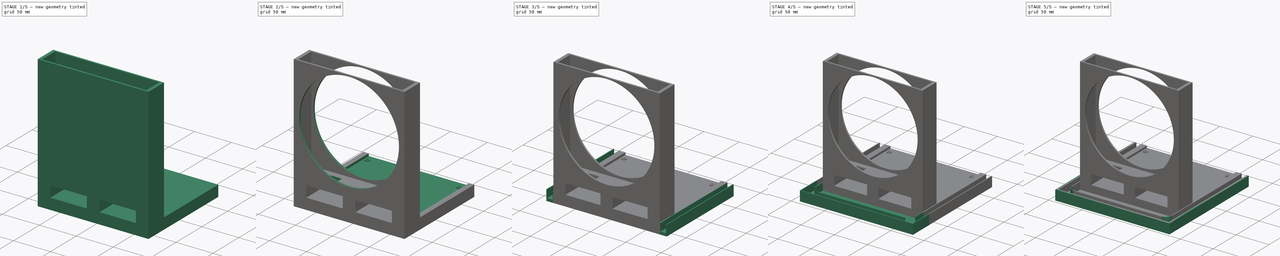
[diagram: build sequence overview — one tinted view per stage of 5, left to right]
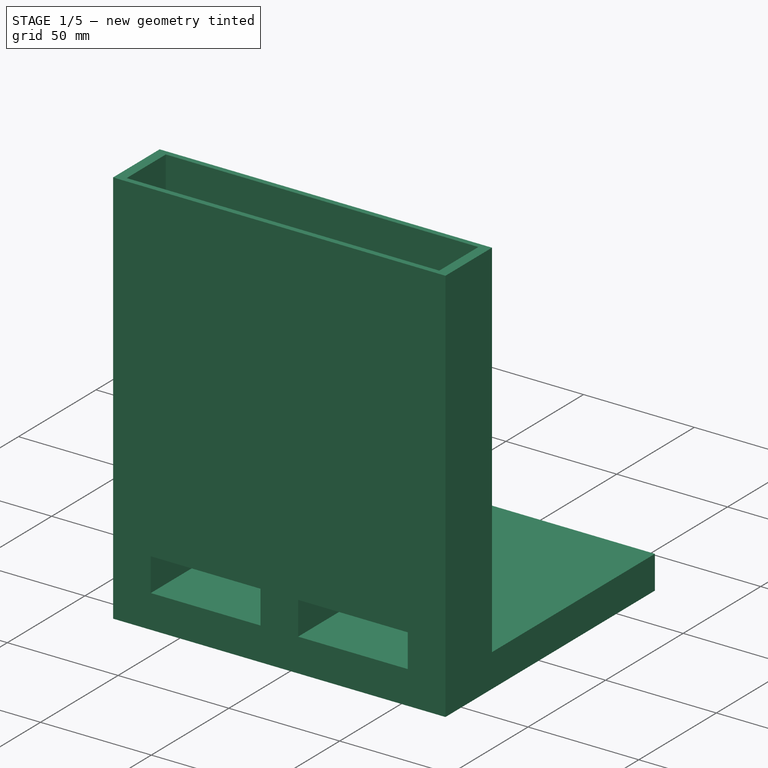
[diagram: stage 1 of 5 — iso view after this stage's code; geometry added in this stage tinted green]
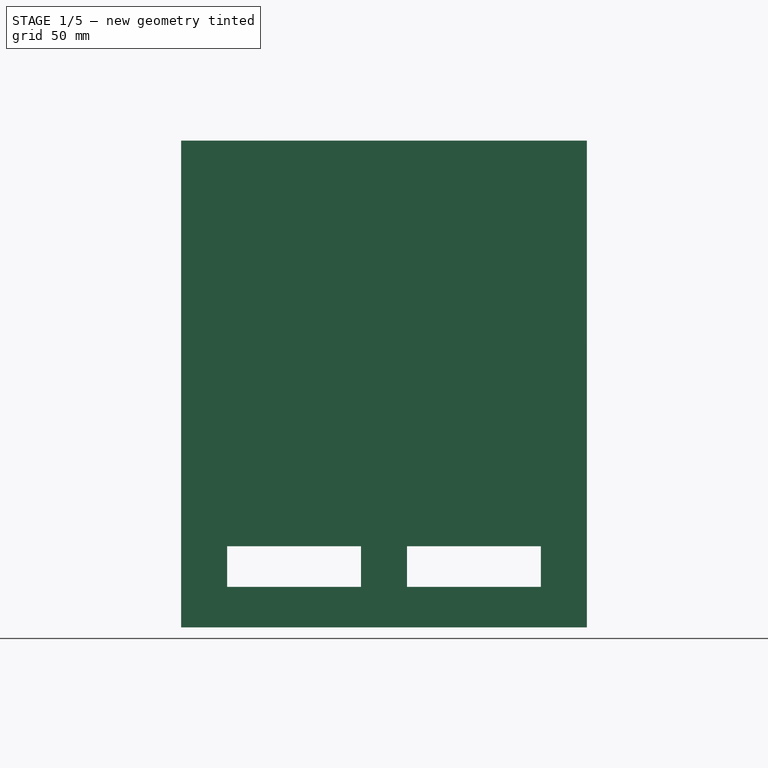
[diagram: stage 1 of 5 — front view after this stage's code; geometry added in this stage tinted green]
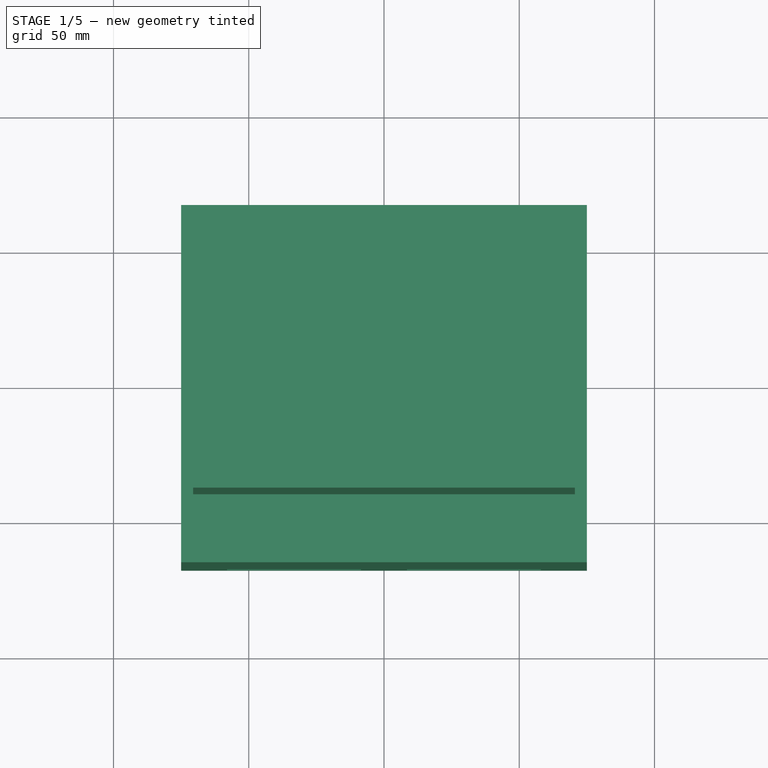
[diagram: stage 1 of 5 — top view after this stage's code; geometry added in this stage tinted green]
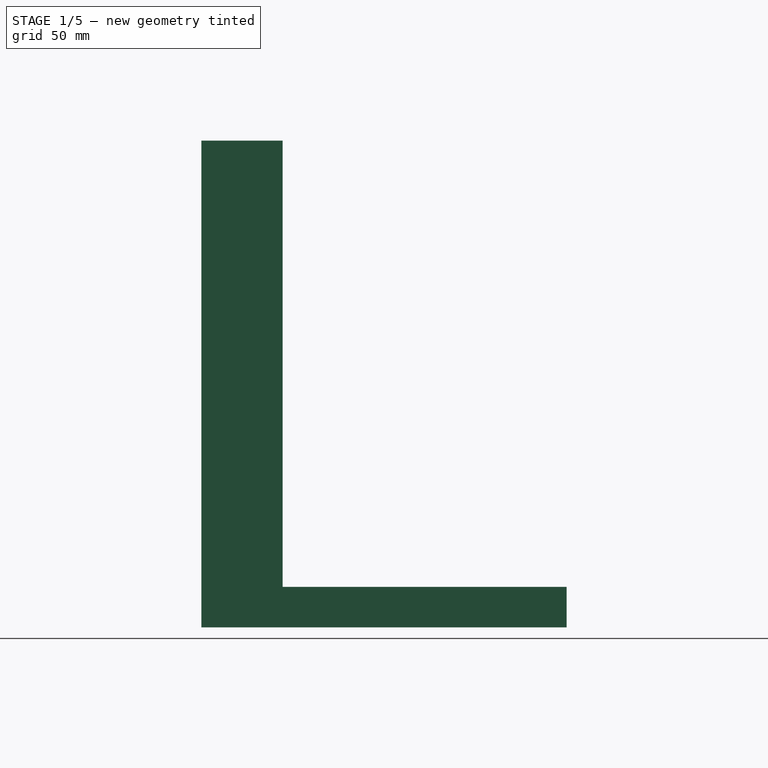
[diagram: stage 1 of 5 — right view after this stage's code; geometry added in this stage tinted green]
FCSTD DOCUMENT  (FreeCAD 0.21R33771 (Git))
Label: Fan-Case
License: All rights reserved
LicenseURL: http://en.wikipedia.org/wiki/All_rights_reserved
objects: Sketcher::SketchObject×22, PartDesign::Pad×12, PartDesign::Pocket×10, PartDesign::Body×1
note: 67 computed .brp shape members not serialized (recipe doc carries the construction recipe); baked Part::Feature solids carry a one-line shape summary decoded from their .brp

FEATURE [Sketcher::SketchObject] Sketch
  FullyConstrained = true
  MapMode = 5
  Support = -> [XY_Plane]
  sketch-geometry (5):
    g0: LineSegment StartX=-75 StartY=67.5 StartZ=0 EndX=-75 EndY=-67.5 EndZ=0
    g1: LineSegment StartX=-75 StartY=-67.5 StartZ=0 EndX=75 EndY=-67.5 EndZ=0
    g2: LineSegment StartX=75 StartY=-67.5 StartZ=0 EndX=75 EndY=67.5 EndZ=0
    g3: LineSegment StartX=75 StartY=67.5 StartZ=0 EndX=-75 EndY=67.5 EndZ=0
    g4: GeomPoint X=0 Y=0 Z=0
  constraints (12):
    c: Coincident(g0,g1)
    c: Coincident(g1,g2)
    c: Coincident(g2,g3)
    c: Coincident(g3,g0)
    c: Horizontal(g1)
    c: Horizontal(g3)
    c: Vertical(g0)
    c: Vertical(g2)
    c: Symmetric(g1,g0,g4)
    c: Coincident(g4,g-1)
    c: DistanceY(g2,g2) = 135
    c: DistanceX(g1,g1) = 150
FEATURE [PartDesign::Pad] Pad
  Direction = (0,0,1)
  Length = 15
  Length2 = 10
  Profile = -> Sketch
  ReferenceAxis = -> Sketch [N_Axis]
  Type = 0
FEATURE [Sketcher::SketchObject] Sketch001
  ExternalGeometry = -> [Pad]
  FullyConstrained = true
  MapMode = 5
  Placement = pos=(0,0,15) rot=(0,0,1;0rad)
  Support = -> [Pad]
  sketch-geometry (12):
    g0: LineSegment StartX=-75 StartY=-67.5 StartZ=0 EndX=-58 EndY=-67.5 EndZ=0
    g1: LineSegment StartX=-58 StartY=-67.5 StartZ=0 EndX=-58 EndY=-37.5 EndZ=0
    g2: LineSegment StartX=-58 StartY=-37.5 StartZ=0 EndX=-75 EndY=-37.5 EndZ=0
    g3: LineSegment StartX=-75 StartY=-37.5 StartZ=0 EndX=-75 EndY=-67.5 EndZ=0
    g4: LineSegment StartX=-8.5 StartY=-67.5 StartZ=0 EndX=8.5 EndY=-67.5 EndZ=0
    g5: LineSegment StartX=8.5 StartY=-67.5 StartZ=0 EndX=8.5 EndY=-37.5 EndZ=0
    g6: LineSegment StartX=8.5 StartY=-37.5 StartZ=0 EndX=-8.5 EndY=-37.5 EndZ=0
    g7: LineSegment StartX=-8.5 StartY=-37.5 StartZ=0 EndX=-8.5 EndY=-67.5 EndZ=0
    g8: LineSegment StartX=75 StartY=-67.5 StartZ=0 EndX=58 EndY=-67.5 EndZ=0
    g9: LineSegment StartX=58 StartY=-67.5 StartZ=0 EndX=58 EndY=-37.5 EndZ=0
    g10: LineSegment StartX=58 StartY=-37.5 StartZ=0 EndX=75 EndY=-37.5 EndZ=0
    g11: LineSegment StartX=75 StartY=-37.5 StartZ=0 EndX=75 EndY=-67.5 EndZ=0
  constraints (34):
    c: Coincident(g0,g1)
    c: Coincident(g1,g2)
    c: Coincident(g2,g3)
    c: Coincident(g3,g0)
    c: Horizontal(g0)
    c: Horizontal(g2)
    c: Vertical(g1)
    c: Vertical(g3)
    c: Coincident(g0,g-4)
    c: Coincident(g4,g5)
    c: Coincident(g5,g6)
    c: Coincident(g6,g7)
    c: Coincident(g7,g4)
    c: Horizontal(g4)
    c: Horizontal(g6)
    c: Vertical(g5)
    c: Vertical(g7)
    c: PointOnObject(g4,g-3)
    c: Coincident(g8,g9)
    c: Coincident(g9,g10)
    c: Coincident(g10,g11)
    c: Coincident(g11,g8)
    c: Horizontal(g8)
    c: Horizontal(g10)
    c: Vertical(g9)
    c: Vertical(g11)
    c: Coincident(g8,g-5)
    c: DistanceX(g2,g2) = 17
    c: DistanceY(g3,g3) = 30
    c: Equal(g10,g6)
    c: Equal(g6,g2)
    c: Equal(g9,g5)
    c: Equal(g5,g1)
    c: DistanceX(g1,g6) = 49.5
FEATURE [PartDesign::Pad] Pad001
  BaseFeature = -> Pad
  Direction = (0,0,1)
  Length = 15
  Length2 = 10
  Profile = -> Sketch001
  ReferenceAxis = -> Sketch001 [N_Axis]
  Type = 0
FEATURE [Sketcher::SketchObject] Sketch002
  ExternalGeometry = -> [Pad001]
  FullyConstrained = true
  MapMode = 5
  Placement = pos=(0,0,30) rot=(0,0,1;0rad)
  Support = -> [Pad001]
  sketch-geometry (4):
    g0: LineSegment StartX=-75 StartY=-37.5 StartZ=0 EndX=75 EndY=-37.5 EndZ=0
    g1: LineSegment StartX=75 StartY=-37.5 StartZ=0 EndX=75 EndY=-67.5 EndZ=0
    g2: LineSegment StartX=75 StartY=-67.5 StartZ=0 EndX=-75 EndY=-67.5 EndZ=0
    g3: LineSegment StartX=-75 StartY=-67.5 StartZ=0 EndX=-75 EndY=-37.5 EndZ=0
  constraints (10):
    c: Coincident(g0,g1)
    c: Coincident(g1,g2)
    c: Coincident(g2,g3)
    c: Coincident(g3,g0)
    c: Horizontal(g0)
    c: Horizontal(g2)
    c: Vertical(g1)
    c: Vertical(g3)
    c: Coincident(g0,g-4)
    c: Coincident(g1,g-6)
FEATURE [PartDesign::Pad] Pad002
  BaseFeature = -> Pad001
  Direction = (0,0,1)
  Length = 150
  Length2 = 10
  Profile = -> Sketch002
  ReferenceAxis = -> Sketch002 [N_Axis]
  Type = 0
FEATURE [Sketcher::SketchObject] Sketch003
  ExternalGeometry = -> [Pad002]
  FullyConstrained = true
  MapMode = 5
  Placement = pos=(0,0,180) rot=(0,0,1;0rad)
  Support = -> [Pad002]
  sketch-geometry (4):
    g0: LineSegment StartX=-70.55 StartY=-39.9 StartZ=0 EndX=70.55 EndY=-39.9 EndZ=0
    g1: LineSegment StartX=70.55 StartY=-39.9 StartZ=0 EndX=70.55 EndY=-65.1 EndZ=0
    g2: LineSegment StartX=70.55 StartY=-65.1 StartZ=0 EndX=-70.55 EndY=-65.1 EndZ=0
    g3: LineSegment StartX=-70.55 StartY=-65.1 StartZ=0 EndX=-70.55 EndY=-39.9 EndZ=0
  constraints (12):
    c: Coincident(g0,g1)
    c: Coincident(g1,g2)
    c: Coincident(g2,g3)
    c: Coincident(g3,g0)
    c: Horizontal(g0)
    c: Horizontal(g2)
    c: Vertical(g1)
    c: Vertical(g3)
    c: DistanceY(g0,g-4) = 2.4
    c: DistanceX(g-4,g0) = 4.45
    c: DistanceX(g0,g-6) = 4.45
    c: DistanceY(g-5,g2) = 2.4
FEATURE [PartDesign::Pocket] Pocket
  BaseFeature = -> Pad002
  Direction = (0,0,-1)
  Length = 140
  Length2 = 5
  Profile = -> Sketch003
  ReferenceAxis = -> Sketch003 [N_Axis]
  Type = 0
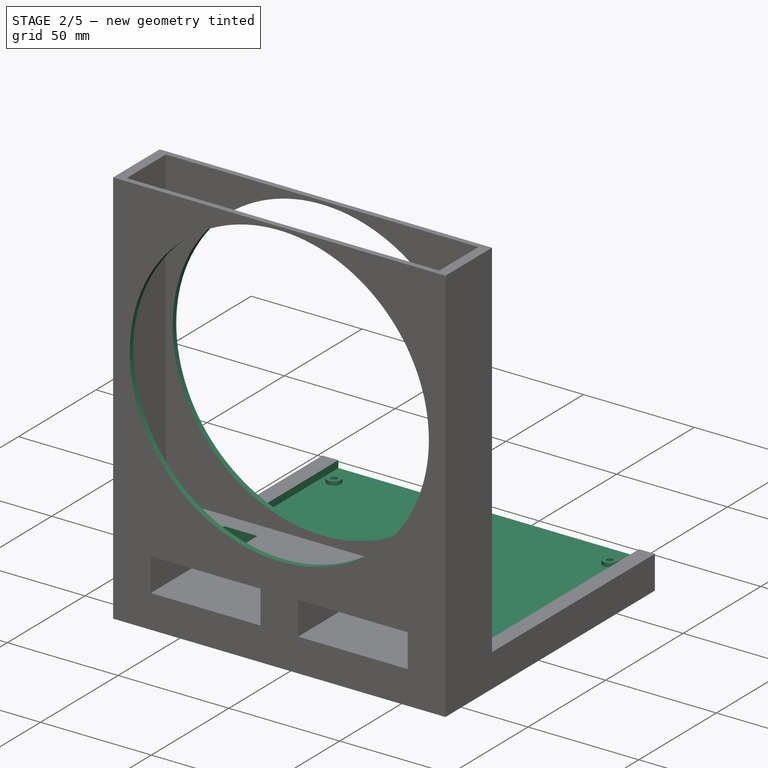
[diagram: stage 2 of 5 — iso view after this stage's code; geometry added in this stage tinted green]
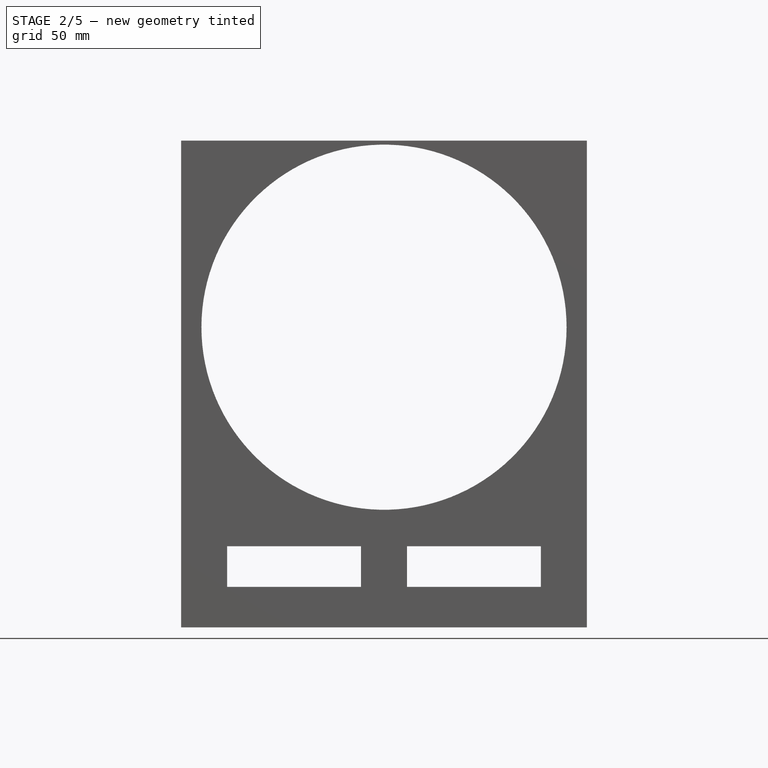
[diagram: stage 2 of 5 — front view after this stage's code; geometry added in this stage tinted green]
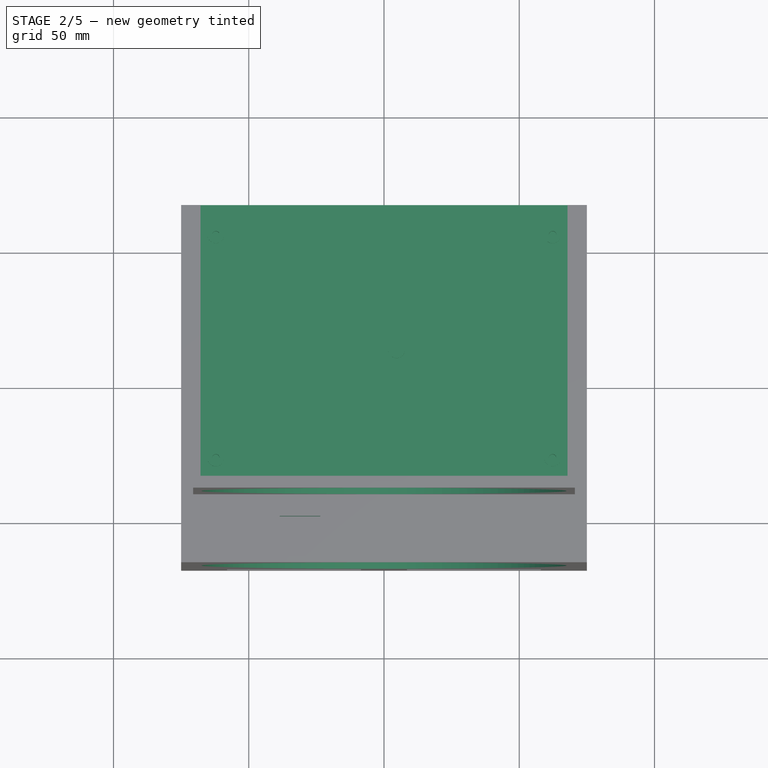
[diagram: stage 2 of 5 — top view after this stage's code; geometry added in this stage tinted green]
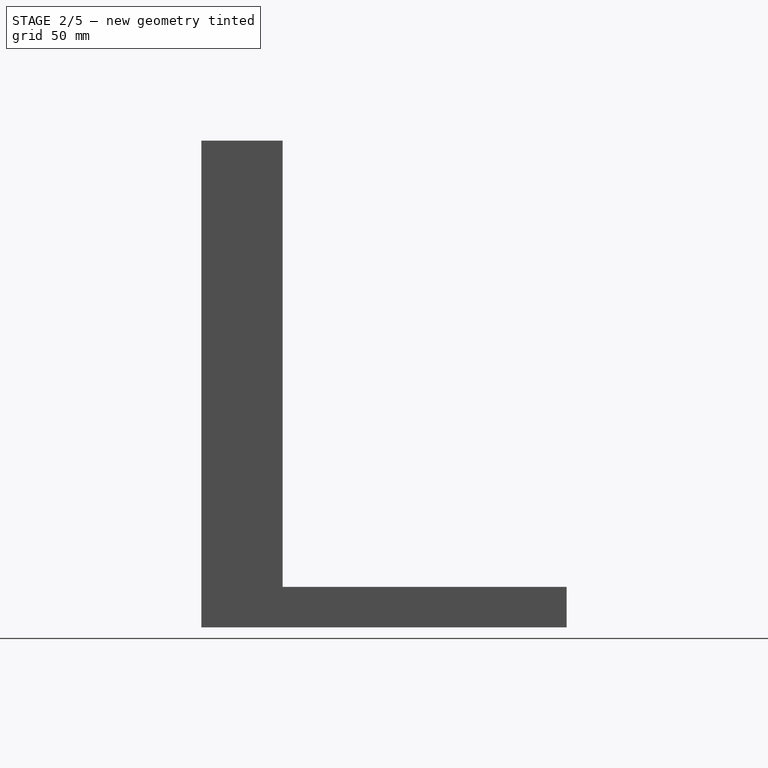
[diagram: stage 2 of 5 — right view after this stage's code; geometry added in this stage tinted green]
FEATURE [Sketcher::SketchObject] Sketch004
  ExternalGeometry = -> [Pocket]
  FullyConstrained = true
  MapMode = 5
  Placement = pos=(0,0,40) rot=(0,0,1;0rad)
  Support = -> [Pocket]
  sketch-geometry (4):
    g0: LineSegment StartX=-38.55 StartY=-47.9 StartZ=0 EndX=-23.55 EndY=-47.9 EndZ=0
    g1: LineSegment StartX=-23.55 StartY=-47.9 StartZ=0 EndX=-23.55 EndY=-56.9 EndZ=0
    g2: LineSegment StartX=-23.55 StartY=-56.9 StartZ=0 EndX=-38.55 EndY=-56.9 EndZ=0
    g3: LineSegment StartX=-38.55 StartY=-56.9 StartZ=0 EndX=-38.55 EndY=-47.9 EndZ=0
  constraints (12):
    c: Coincident(g0,g1)
    c: Coincident(g1,g2)
    c: Coincident(g2,g3)
    c: Coincident(g3,g0)
    c: Horizontal(g0)
    c: Horizontal(g2)
    c: Vertical(g1)
    c: Vertical(g3)
    c: DistanceX(g-4,g0) = 32
    c: DistanceY(g3,g3) = 9
    c: DistanceX(g0,g0) = 15
    c: DistanceY(g0,g-4) = 8
FEATURE [PartDesign::Pocket] Pocket001
  BaseFeature = -> Pocket
  Direction = (0,0,-1)
  Length = 10
  Length2 = 5
  Profile = -> Sketch004
  ReferenceAxis = -> Sketch004 [N_Axis]
  Type = 0
FEATURE [Sketcher::SketchObject] Sketch005
  ExternalGeometry = -> [Pocket001]
  FullyConstrained = true
  MapMode = 5
  Placement = pos=(0,-67.5,0) rot=(1,0,0;1.5708rad)
  Support = -> [Pocket001]
  sketch-geometry (1):
    g0: Circle CenterX=0 CenterY=111 CenterZ=0 NormalX=0 NormalY=0 NormalZ=1 AngleXU=0 Radius=67.5
  constraints (3):
    c: PointOnObject(g0,g-2)
    c: DistanceY(g0,g-5) = 69
    c: Diameter(g0) = 135
FEATURE [PartDesign::Pocket] Pocket002
  BaseFeature = -> Pocket001
  Direction = (0,1,-2e-16)
  Length = 30
  Length2 = 5
  Profile = -> Sketch005
  ReferenceAxis = -> Sketch005 [N_Axis]
  Type = 0
FEATURE [Sketcher::SketchObject] Sketch006
  ExternalGeometry = -> [Pocket002]
  FullyConstrained = true
  MapMode = 5
  Placement = pos=(0,0,15) rot=(0,0,1;0rad)
  Support = -> [Pocket002]
  sketch-geometry (4):
    g0: LineSegment StartX=-67.85 StartY=67.5 StartZ=0 EndX=67.85 EndY=67.5 EndZ=0
    g1: LineSegment StartX=67.85 StartY=67.5 StartZ=0 EndX=67.85 EndY=-32.6 EndZ=0
    g2: LineSegment StartX=67.85 StartY=-32.6 StartZ=0 EndX=-67.85 EndY=-32.6 EndZ=0
    g3: LineSegment StartX=-67.85 StartY=-32.6 StartZ=0 EndX=-67.85 EndY=67.5 EndZ=0
  constraints (12):
    c: Coincident(g0,g1)
    c: Coincident(g1,g2)
    c: Coincident(g2,g3)
    c: Coincident(g3,g0)
    c: Horizontal(g0)
    c: Horizontal(g2)
    c: Vertical(g1)
    c: Vertical(g3)
    c: PointOnObject(g0,g-3)
    c: DistanceY(g3,g3) = 100.1
    c: DistanceX(g2,g2) = 135.7
    c: DistanceX(g-5,g0) = 7.15
FEATURE [PartDesign::Pocket] Pocket003
  BaseFeature = -> Pocket002
  Direction = (0,0,-1)
  Length = 3.2
  Length2 = 5
  Profile = -> Sketch006
  ReferenceAxis = -> Sketch006 [N_Axis]
  Type = 0
FEATURE [Sketcher::SketchObject] Sketch007
  ExternalGeometry = -> [Pocket003]
  FullyConstrained = true
  MapMode = 5
  Placement = pos=(0,0,11.8) rot=(0,0,1;0rad)
  Support = -> [Pocket003]
  sketch-geometry (5):
    g0: Circle CenterX=-62.15 CenterY=56.5 CenterZ=0 NormalX=0 NormalY=0 NormalZ=1 AngleXU=0 Radius=3.1
    g1: Circle CenterX=-62.15 CenterY=-26 CenterZ=0 NormalX=0 NormalY=0 NormalZ=1 AngleXU=0 Radius=3.1
    g2: Circle CenterX=62.35 CenterY=-26 CenterZ=0 NormalX=0 NormalY=0 NormalZ=1 AngleXU=0 Radius=3.1
    g3: Circle CenterX=62.35 CenterY=56.5 CenterZ=0 NormalX=0 NormalY=0 NormalZ=1 AngleXU=0 Radius=3.1
    g4: Circle CenterX=4.65 CenterY=14 CenterZ=0 NormalX=0 NormalY=0 NormalZ=1 AngleXU=0 Radius=3.1
  constraints (15):
    c: DistanceY(g0,g-4) = 11
    c: Vertical(g1,g0)
    c: Vertical(g3,g2)
    c: Horizontal(g0,g3)
    c: Horizontal(g1,g2)
    c: DistanceY(g1,g0) = 82.5
    c: DistanceX(g0,g3) = 124.5
    c: DistanceX(g3,g-5) = 5.5
    c: Diameter(g0) = 6.2
    c: Equal(g0,g3)
    c: Equal(g3,g2)
    c: Equal(g2,g1)
    c: DistanceY(g4,g-5) = 53.5
    c: Equal(g4,g3)
    c: DistanceX(g-4,g4) = 72.5
FEATURE [PartDesign::Pad] Pad003
  BaseFeature = -> Pocket003
  Direction = (0,0,1)
  Length = 1.6
  Length2 = 10
  Profile = -> Sketch007
  ReferenceAxis = -> Sketch007 [N_Axis]
  Type = 0
FEATURE [Sketcher::SketchObject] Sketch008
  ExternalGeometry = -> [Pad003]
  FullyConstrained = true
  MapMode = 5
  Placement = pos=(0,0,13.4) rot=(0,0,1;0rad)
  Support = -> [Pad003]
  sketch-geometry (4):
    g0: Circle CenterX=-62.15 CenterY=56.5 CenterZ=0 NormalX=0 NormalY=0 NormalZ=1 AngleXU=0 Radius=1.4
    g1: Circle CenterX=62.35 CenterY=-26 CenterZ=0 NormalX=0 NormalY=0 NormalZ=1 AngleXU=0 Radius=1.4
    g2: Circle CenterX=62.35 CenterY=56.5 CenterZ=0 NormalX=0 NormalY=0 NormalZ=1 AngleXU=0 Radius=1.4
    g3: Circle CenterX=-62.15 CenterY=-26 CenterZ=0 NormalX=0 NormalY=0 NormalZ=1 AngleXU=0 Radius=1.4
  constraints (8):
    c: Coincident(g0,g-3)
    c: Diameter(g0) = 2.8
    c: Coincident(g1,g-5)
    c: Coincident(g2,g-4)
    c: Equal(g1,g2)
    c: Equal(g2,g0)
    c: Coincident(g3,g-6)
    c: Equal(g3,g1)
FEATURE [PartDesign::Pocket] Pocket004
  BaseFeature = -> Pad003
  Direction = (0,0,-1)
  Length = 6
  Length2 = 5
  Profile = -> Sketch008
  ReferenceAxis = -> Sketch008 [N_Axis]
  Type = 0
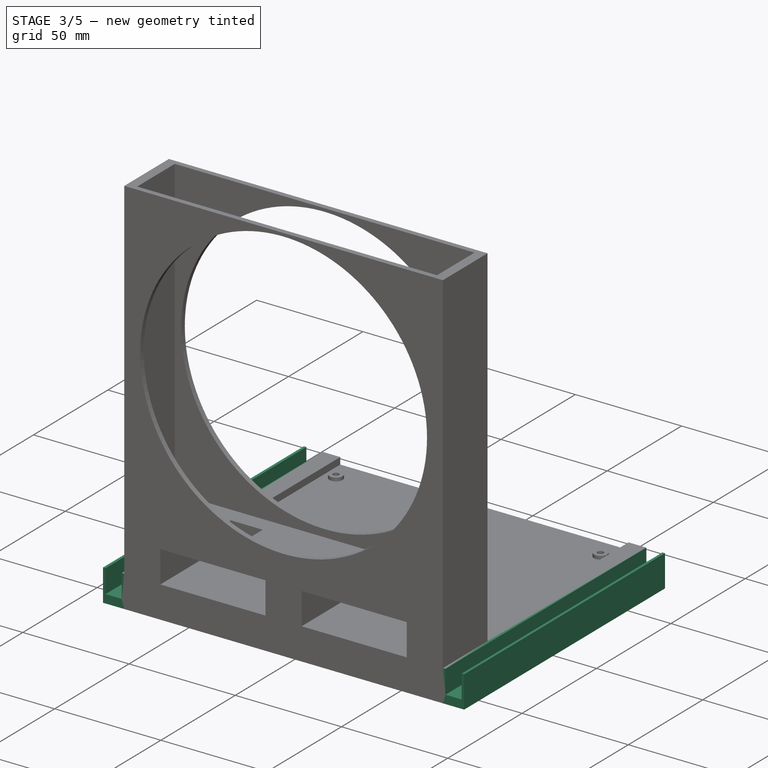
[diagram: stage 3 of 5 — iso view after this stage's code; geometry added in this stage tinted green]
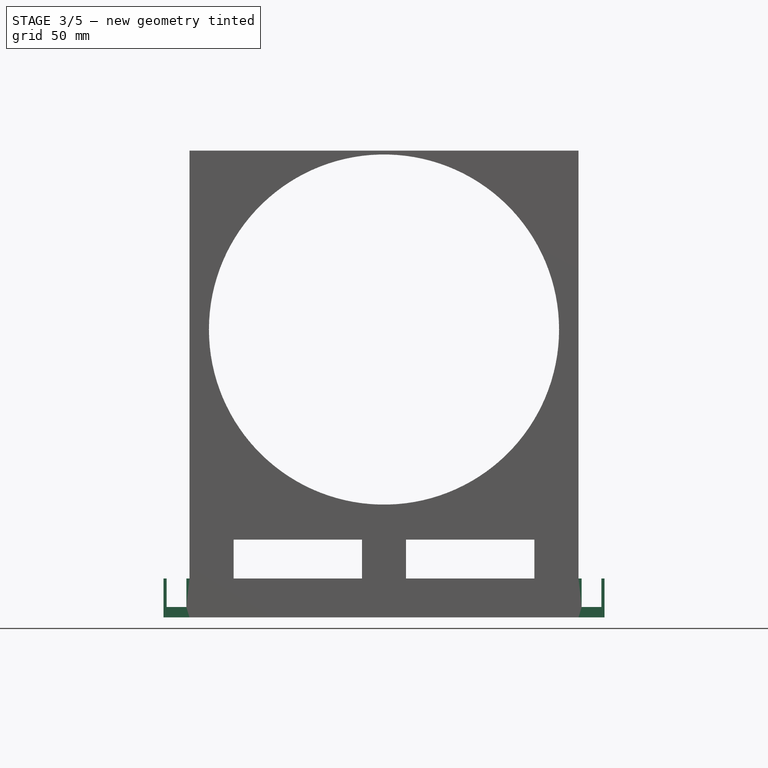
[diagram: stage 3 of 5 — front view after this stage's code; geometry added in this stage tinted green]
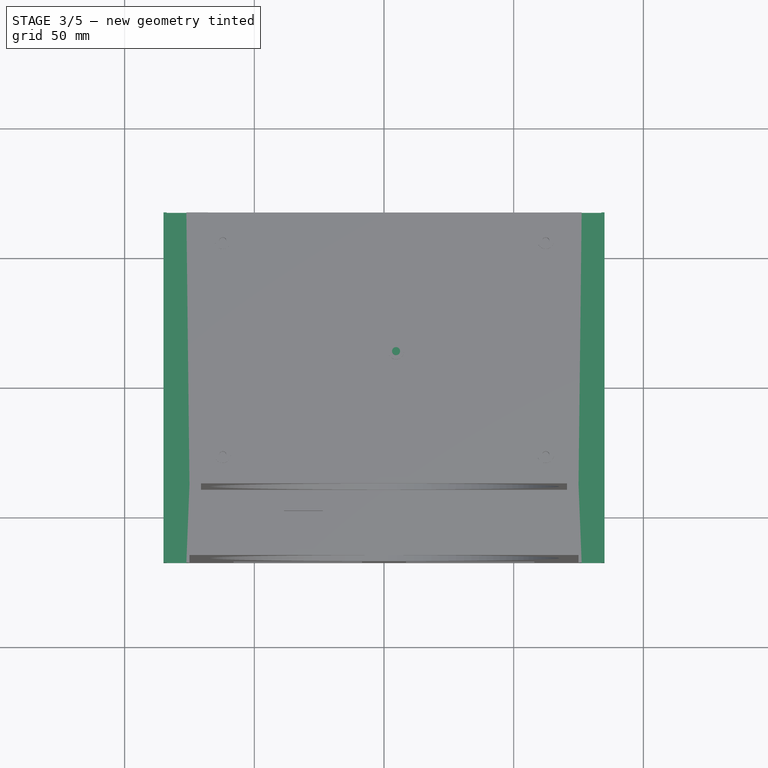
[diagram: stage 3 of 5 — top view after this stage's code; geometry added in this stage tinted green]
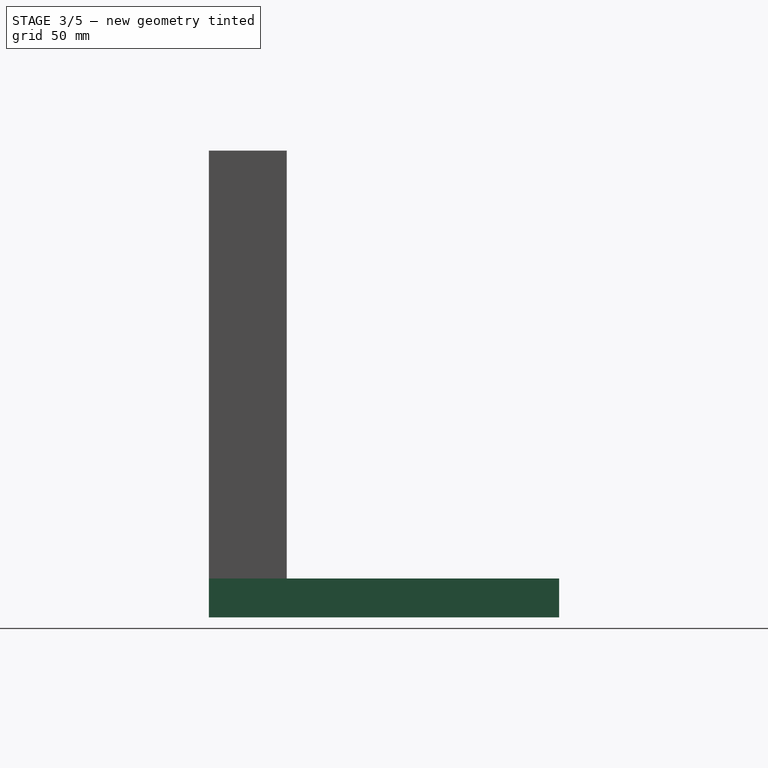
[diagram: stage 3 of 5 — right view after this stage's code; geometry added in this stage tinted green]
FEATURE [Sketcher::SketchObject] Sketch009
  ExternalGeometry = -> [Pocket004]
  FullyConstrained = true
  MapMode = 5
  Placement = pos=(0,0,13.4) rot=(0,0,1;0rad)
  Support = -> [Pocket004]
  sketch-geometry (1):
    g0: Circle CenterX=4.65 CenterY=14 CenterZ=0 NormalX=0 NormalY=0 NormalZ=1 AngleXU=0 Radius=1.55
  constraints (2):
    c: Coincident(g0,g-3)
    c: Diameter(g0) = 3.1
FEATURE [PartDesign::Pad] Pad004
  BaseFeature = -> Pocket004
  Direction = (0,0,1)
  Length = 1.6
  Length2 = 10
  Profile = -> Sketch009
  ReferenceAxis = -> Sketch009 [N_Axis]
  Type = 0
FEATURE [Sketcher::SketchObject] Sketch010
  ExternalGeometry = -> [Pad004]
  FullyConstrained = true
  MapMode = 5
  Placement = pos=(75,0,0) rot=(0.57735,0.57735,0.57735;2.0944rad)
  Support = -> [Pad004]
  sketch-geometry (4):
    g0: LineSegment StartX=-67.5 StartY=15 StartZ=0 EndX=67.5 EndY=15 EndZ=0
    g1: LineSegment StartX=67.5 StartY=15 StartZ=0 EndX=67.5 EndY=0 EndZ=0
    g2: LineSegment StartX=67.5 StartY=0 StartZ=0 EndX=-67.5 EndY=0 EndZ=0
    g3: LineSegment StartX=-67.5 StartY=0 StartZ=0 EndX=-67.5 EndY=15 EndZ=0
  constraints (10):
    c: Coincident(g0,g1)
    c: Coincident(g1,g2)
    c: Coincident(g2,g3)
    c: Coincident(g3,g0)
    c: Horizontal(g0)
    c: Horizontal(g2)
    c: Vertical(g1)
    c: Vertical(g3)
    c: Coincident(g0,g-5)
    c: Coincident(g1,g-7)
FEATURE [PartDesign::Pad] Pad005
  BaseFeature = -> Pad004
  Direction = (1,0,0)
  Length = 10
  Length2 = 10
  Profile = -> Sketch010
  ReferenceAxis = -> Sketch010 [N_Axis]
  Type = 0
FEATURE [Sketcher::SketchObject] Sketch011
  ExternalGeometry = -> [Pad005]
  FullyConstrained = true
  MapMode = 5
  Placement = pos=(-75,0,0) rot=(0.57735,-0.57735,-0.57735;2.0944rad)
  Support = -> [Pad005]
  sketch-geometry (4):
    g0: LineSegment StartX=-67.5 StartY=15 StartZ=0 EndX=67.5 EndY=15 EndZ=0
    g1: LineSegment StartX=67.5 StartY=15 StartZ=0 EndX=67.5 EndY=0 EndZ=0
    g2: LineSegment StartX=67.5 StartY=0 StartZ=0 EndX=-67.5 EndY=0 EndZ=0
    g3: LineSegment StartX=-67.5 StartY=0 StartZ=0 EndX=-67.5 EndY=15 EndZ=0
  constraints (10):
    c: Coincident(g0,g1)
    c: Coincident(g1,g2)
    c: Coincident(g2,g3)
    c: Coincident(g3,g0)
    c: Horizontal(g0)
    c: Horizontal(g2)
    c: Vertical(g1)
    c: Vertical(g3)
    c: Coincident(g0,g-4)
    c: Coincident(g1,g-6)
FEATURE [PartDesign::Pad] Pad006
  BaseFeature = -> Pad005
  Direction = (-1,0,0)
  Length = 10
  Length2 = 10
  Profile = -> Sketch011
  ReferenceAxis = -> Sketch011 [N_Axis]
  Type = 0
FEATURE [Sketcher::SketchObject] Sketch012
  ExternalGeometry = -> [Pad006]
  FullyConstrained = true
  MapMode = 5
  Placement = pos=(0,0,15) rot=(0,0,1;0rad)
  Support = -> [Pad006]
  sketch-geometry (8):
    g0: LineSegment StartX=-83.8 StartY=67.5 StartZ=0 EndX=-76.2 EndY=67.5 EndZ=0
    g1: LineSegment StartX=-76.2 StartY=67.5 StartZ=0 EndX=-76.2 EndY=-67.5 EndZ=0
    g2: LineSegment StartX=-76.2 StartY=-67.5 StartZ=0 EndX=-83.8 EndY=-67.5 EndZ=0
    g3: LineSegment StartX=-83.8 StartY=-67.5 StartZ=0 EndX=-83.8 EndY=67.5 EndZ=0
    g4: LineSegment StartX=76.2 StartY=-67.5 StartZ=0 EndX=83.8 EndY=-67.5 EndZ=0
    g5: LineSegment StartX=83.8 StartY=-67.5 StartZ=0 EndX=83.8 EndY=67.5 EndZ=0
    g6: LineSegment StartX=83.8 StartY=67.5 StartZ=0 EndX=76.2 EndY=67.5 EndZ=0
    g7: LineSegment StartX=76.2 StartY=67.5 StartZ=0 EndX=76.2 EndY=-67.5 EndZ=0
  constraints (24):
    c: Coincident(g0,g1)
    c: Coincident(g1,g2)
    c: Coincident(g2,g3)
    c: Coincident(g3,g0)
    c: Horizontal(g0)
    c: Horizontal(g2)
    c: Vertical(g1)
    c: Vertical(g3)
    c: PointOnObject(g0,g-9)
    c: PointOnObject(g1,g-11)
    c: Coincident(g4,g5)
    c: Coincident(g5,g6)
    c: Coincident(g6,g7)
    c: Coincident(g7,g4)
    c: Horizontal(g4)
    c: Horizontal(g6)
    c: Vertical(g5)
    c: Vertical(g7)
    c: PointOnObject(g4,g-6)
    c: PointOnObject(g5,g-4)
    c: DistanceX(g0,g0) = 7.6
    c: Equal(g0,g6)
    c: DistanceX(g-10,g0) = 1.2
    c: DistanceX(g5,g-5) = 1.2
FEATURE [PartDesign::Pocket] Pocket005
  BaseFeature = -> Pad006
  Direction = (0,0,-1)
  Length = 11
  Length2 = 5
  Profile = -> Sketch012
  ReferenceAxis = -> Sketch012 [N_Axis]
  Type = 0
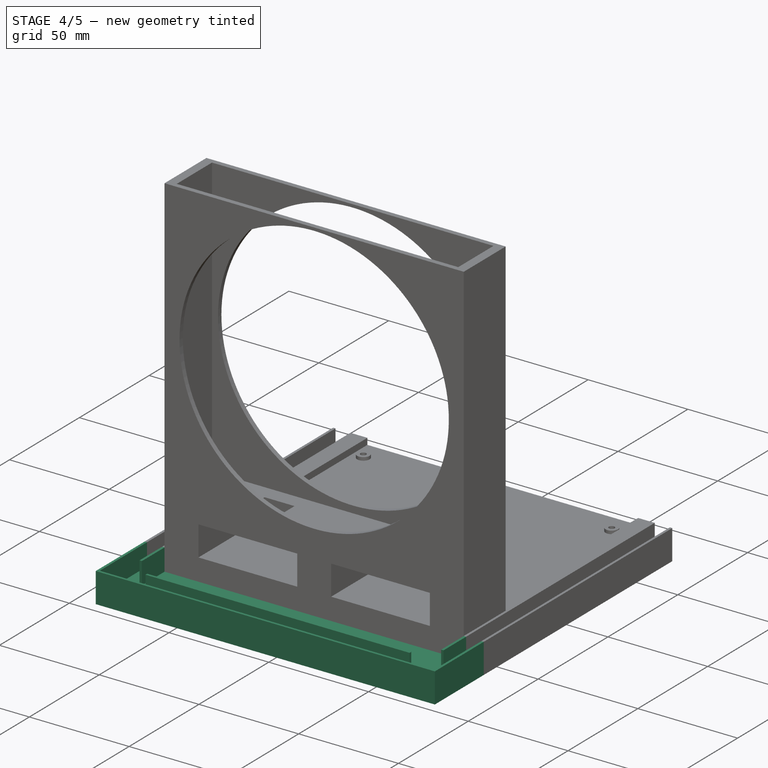
[diagram: stage 4 of 5 — iso view after this stage's code; geometry added in this stage tinted green]
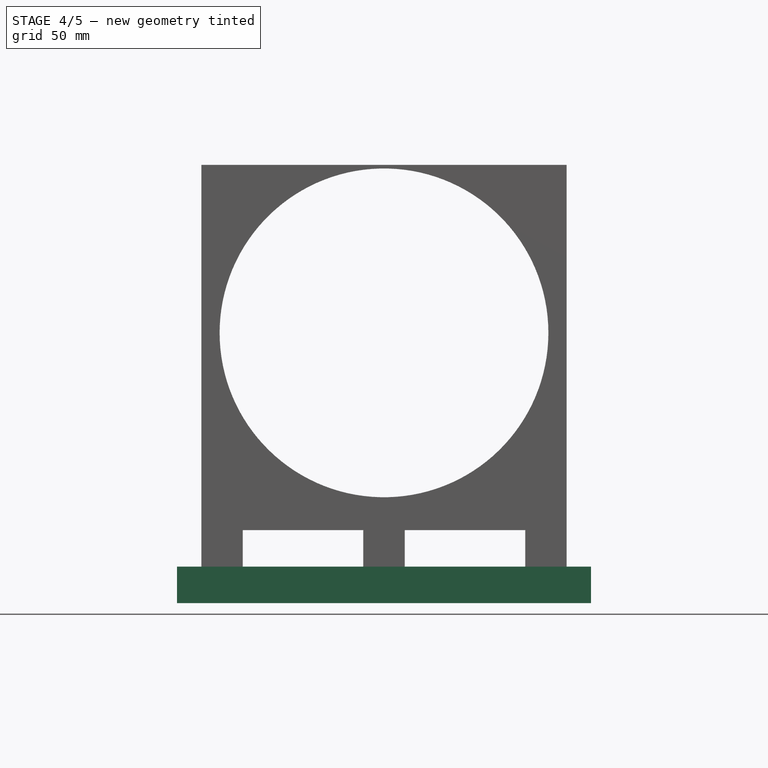
[diagram: stage 4 of 5 — front view after this stage's code; geometry added in this stage tinted green]
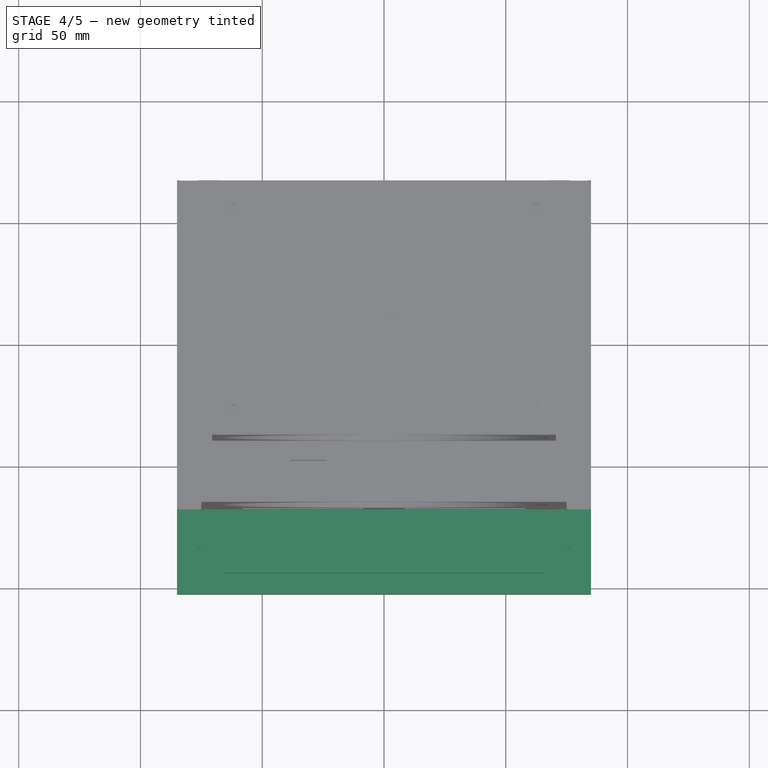
[diagram: stage 4 of 5 — top view after this stage's code; geometry added in this stage tinted green]
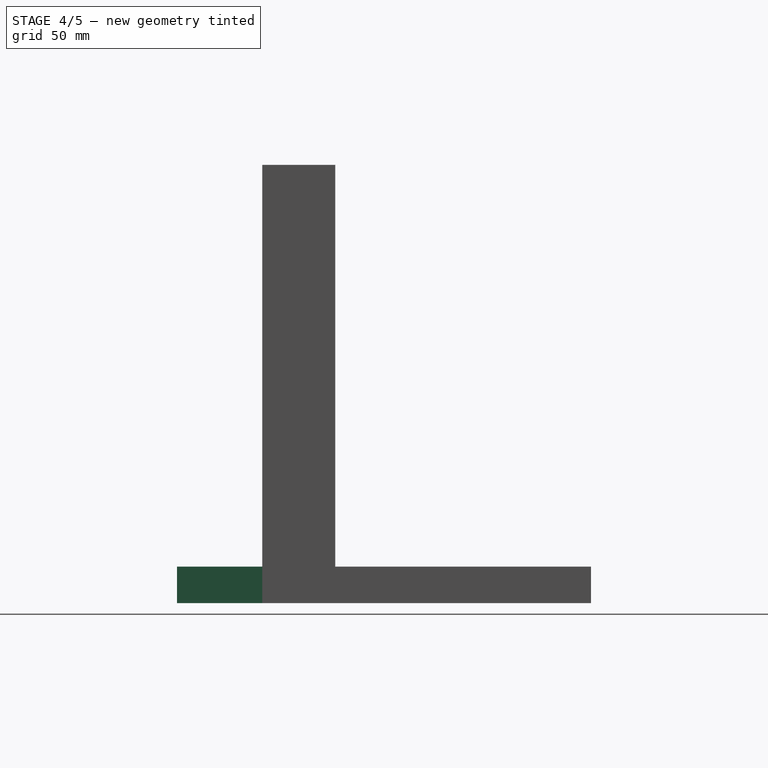
[diagram: stage 4 of 5 — right view after this stage's code; geometry added in this stage tinted green]
FEATURE [Sketcher::SketchObject] Sketch013
  ExternalGeometry = -> [Pocket005]
  FullyConstrained = true
  MapMode = 5
  Placement = pos=(0,-67.5,0) rot=(1,0,0;1.5708rad)
  Support = -> [Pocket005]
  sketch-geometry (4):
    g0: LineSegment StartX=-85 StartY=15 StartZ=0 EndX=85 EndY=15 EndZ=0
    g1: LineSegment StartX=85 StartY=15 StartZ=0 EndX=85 EndY=0 EndZ=0
    g2: LineSegment StartX=85 StartY=0 StartZ=0 EndX=-85 EndY=0 EndZ=0
    g3: LineSegment StartX=-85 StartY=0 StartZ=0 EndX=-85 EndY=15 EndZ=0
  constraints (10):
    c: Coincident(g0,g1)
    c: Coincident(g1,g2)
    c: Coincident(g2,g3)
    c: Coincident(g3,g0)
    c: Horizontal(g0)
    c: Horizontal(g2)
    c: Vertical(g1)
    c: Vertical(g3)
    c: Coincident(g0,g-3)
    c: Coincident(g1,g-7)
FEATURE [PartDesign::Pad] Pad007
  BaseFeature = -> Pocket005
  Direction = (0,-1,2e-16)
  Length = 35
  Length2 = 10
  Profile = -> Sketch013
  ReferenceAxis = -> Sketch013 [N_Axis]
  Type = 0
FEATURE [Sketcher::SketchObject] Sketch014
  ExternalGeometry = -> [Pad007]
  FullyConstrained = true
  MapMode = 5
  Placement = pos=(0,3.3e-15,15) rot=(0,0,1;0rad)
  Support = -> [Pad007]
  sketch-geometry (4):
    g0: LineSegment StartX=-75 StartY=-67.5 StartZ=0 EndX=75 EndY=-67.5 EndZ=0
    g1: LineSegment StartX=75 StartY=-67.5 StartZ=0 EndX=75 EndY=-92.5 EndZ=0
    g2: LineSegment StartX=75 StartY=-92.5 StartZ=0 EndX=-75 EndY=-92.5 EndZ=0
    g3: LineSegment StartX=-75 StartY=-92.5 StartZ=0 EndX=-75 EndY=-67.5 EndZ=0
  constraints (11):
    c: Coincident(g0,g1)
    c: Coincident(g1,g2)
    c: Coincident(g2,g3)
    c: Coincident(g3,g0)
    c: Horizontal(g0)
    c: Horizontal(g2)
    c: Vertical(g1)
    c: Vertical(g3)
    c: Coincident(g0,g-4)
    c: Vertical(g0,g-5)
    c: DistanceY(g-6,g1) = 10
FEATURE [PartDesign::Pocket] Pocket006
  BaseFeature = -> Pad007
  Direction = (0,-2e-16,-1)
  Length = 11
  Length2 = 5
  Profile = -> Sketch014
  ReferenceAxis = -> Sketch014 [N_Axis]
  Type = 0
FEATURE [Sketcher::SketchObject] Sketch015
  ExternalGeometry = -> [Pocket006]
  FullyConstrained = true
  MapMode = 5
  Placement = pos=(0,3.3e-15,15) rot=(0,0,1;0rad)
  Support = -> [Pocket006]
  sketch-geometry (8):
    g0: LineSegment StartX=-83.8 StartY=-67.5 StartZ=0 EndX=-76.2 EndY=-67.5 EndZ=0
    g1: LineSegment StartX=-76.2 StartY=-67.5 StartZ=0 EndX=-76.2 EndY=-93.7 EndZ=0
    g2: LineSegment StartX=-76.2 StartY=-93.7 StartZ=0 EndX=-83.8 EndY=-93.7 EndZ=0
    g3: LineSegment StartX=-83.8 StartY=-93.7 StartZ=0 EndX=-83.8 EndY=-67.5 EndZ=0
    g4: LineSegment StartX=76.2 StartY=-67.5 StartZ=0 EndX=83.8 EndY=-67.5 EndZ=0
    g5: LineSegment StartX=83.8 StartY=-67.5 StartZ=0 EndX=83.8 EndY=-93.7 EndZ=0
    g6: LineSegment StartX=83.8 StartY=-93.7 StartZ=0 EndX=76.2 EndY=-93.7 EndZ=0
    g7: LineSegment StartX=76.2 StartY=-93.7 StartZ=0 EndX=76.2 EndY=-67.5 EndZ=0
  constraints (22):
    c: Coincident(g0,g1)
    c: Coincident(g1,g2)
    c: Coincident(g2,g3)
    c: Coincident(g3,g0)
    c: Horizontal(g0)
    c: Horizontal(g2)
    c: Vertical(g1)
    c: Vertical(g3)
    c: Coincident(g0,g-5)
    c: Coincident(g4,g5)
    c: Coincident(g5,g6)
    c: Coincident(g6,g7)
    c: Coincident(g7,g4)
    c: Horizontal(g4)
    c: Horizontal(g6)
    c: Vertical(g5)
    c: Vertical(g7)
    c: Coincident(g4,g-3)
    c: Vertical(g4,g-3)
    c: DistanceY(g-4,g5) = 8.8
    c: Equal(g2,g6)
    c: Horizontal(g1,g6)
FEATURE [PartDesign::Pocket] Pocket007
  BaseFeature = -> Pocket006
  Direction = (0,-2e-16,-1)
  Length = 11
  Length2 = 5
  Profile = -> Sketch015
  ReferenceAxis = -> Sketch015 [N_Axis]
  Type = 0
FEATURE [Sketcher::SketchObject] Sketch016
  ExternalGeometry = -> [Pocket007]
  FullyConstrained = true
  MapMode = 5
  Placement = pos=(0,3.3e-15,15) rot=(0,0,1;0rad)
  Support = -> [Pocket007]
  sketch-geometry (4):
    g0: LineSegment StartX=-83.8 StartY=-93.7 StartZ=0 EndX=83.8 EndY=-93.7 EndZ=0
    g1: LineSegment StartX=83.8 StartY=-93.7 StartZ=0 EndX=83.8 EndY=-101.3 EndZ=0
    g2: LineSegment StartX=83.8 StartY=-101.3 StartZ=0 EndX=-83.8 EndY=-101.3 EndZ=0
    g3: LineSegment StartX=-83.8 StartY=-101.3 StartZ=0 EndX=-83.8 EndY=-93.7 EndZ=0
  constraints (11):
    c: Coincident(g0,g1)
    c: Coincident(g1,g2)
    c: Coincident(g2,g3)
    c: Coincident(g3,g0)
    c: Horizontal(g0)
    c: Horizontal(g2)
    c: Vertical(g1)
    c: Vertical(g3)
    c: Coincident(g0,g-3)
    c: Vertical(g1,g-5)
    c: DistanceY(g-4,g1) = 1.2
FEATURE [PartDesign::Pocket] Pocket008
  BaseFeature = -> Pocket007
  Direction = (0,-2e-16,-1)
  Length = 10
  Length2 = 5
  Profile = -> Sketch016
  ReferenceAxis = -> Sketch016 [N_Axis]
  Type = 0
FEATURE [Sketcher::SketchObject] Sketch017
  ExternalGeometry = -> [Pocket008]
  FullyConstrained = true
  MapMode = 5
  Placement = pos=(0,3.3e-15,15) rot=(0,0,1;0rad)
  Support = -> [Pocket008]
  sketch-geometry (8):
    g0: LineSegment StartX=-76.2 StartY=-93.7 StartZ=0 EndX=-66.2 EndY=-93.7 EndZ=0
    g1: LineSegment StartX=-66.2 StartY=-93.7 StartZ=0 EndX=-66.2 EndY=-83.7 EndZ=0
    g2: LineSegment StartX=-66.2 StartY=-83.7 StartZ=0 EndX=-76.2 EndY=-83.7 EndZ=0
    g3: LineSegment StartX=-76.2 StartY=-83.7 StartZ=0 EndX=-76.2 EndY=-93.7 EndZ=0
    g4: LineSegment StartX=76.2 StartY=-93.7 StartZ=0 EndX=66.2 EndY=-93.7 EndZ=0
    g5: LineSegment StartX=66.2 StartY=-93.7 StartZ=0 EndX=66.2 EndY=-83.7 EndZ=0
    g6: LineSegment StartX=66.2 StartY=-83.7 StartZ=0 EndX=76.2 EndY=-83.7 EndZ=0
    g7: LineSegment StartX=76.2 StartY=-83.7 StartZ=0 EndX=76.2 EndY=-93.7 EndZ=0
  constraints (22):
    c: Coincident(g0,g1)
    c: Coincident(g1,g2)
    c: Coincident(g2,g3)
    c: Coincident(g3,g0)
    c: Horizontal(g0)
    c: Horizontal(g2)
    c: Vertical(g1)
    c: Vertical(g3)
    c: Coincident(g0,g-4)
    c: Coincident(g4,g5)
    c: Coincident(g5,g6)
    c: Coincident(g6,g7)
    c: Coincident(g7,g4)
    c: Horizontal(g4)
    c: Horizontal(g6)
    c: Vertical(g5)
    c: Vertical(g7)
    c: Coincident(g4,g-4)
    c: DistanceX(g6,g6) = 10
    c: DistanceY(g5,g5) = 10
    c: Equal(g6,g2)
    c: Equal(g1,g5)
FEATURE [PartDesign::Pocket] Pocket009
  BaseFeature = -> Pocket008
  Direction = (0,-2e-16,-1)
  Length = 11
  Length2 = 5
  Profile = -> Sketch017
  ReferenceAxis = -> Sketch017 [N_Axis]
  Type = 0
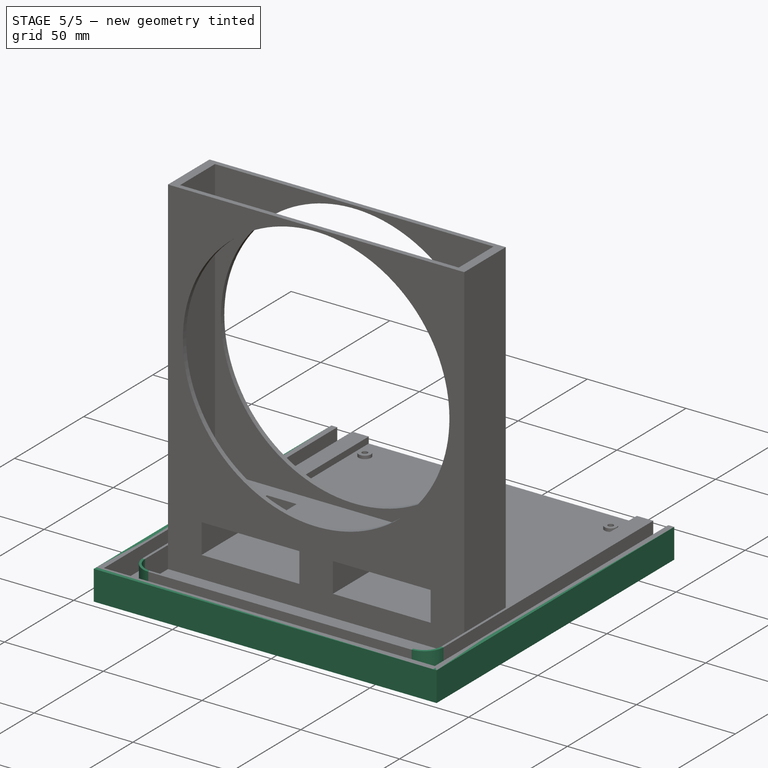
[diagram: stage 5 of 5 — iso view after this stage's code; geometry added in this stage tinted green]
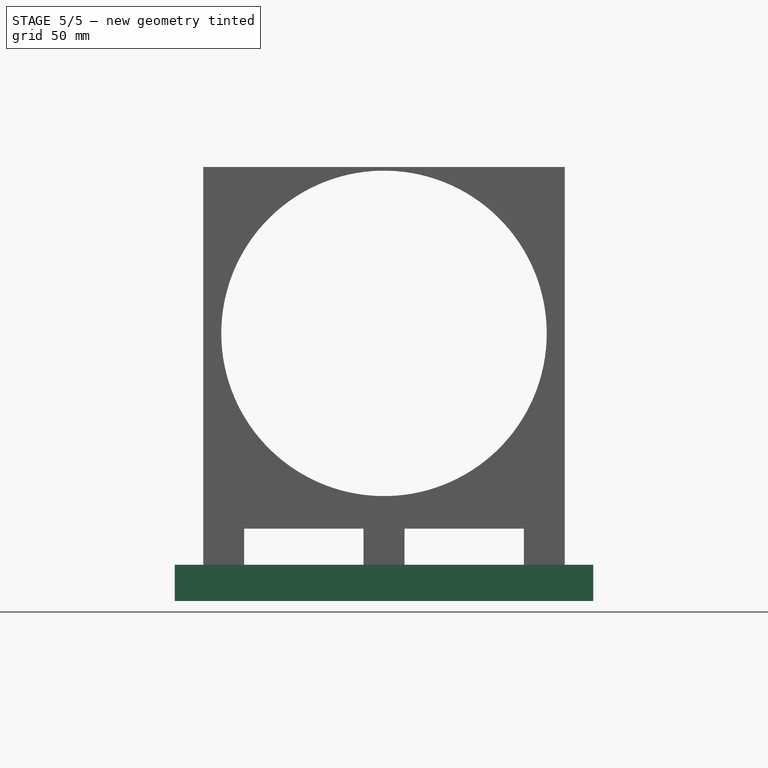
[diagram: stage 5 of 5 — front view after this stage's code; geometry added in this stage tinted green]
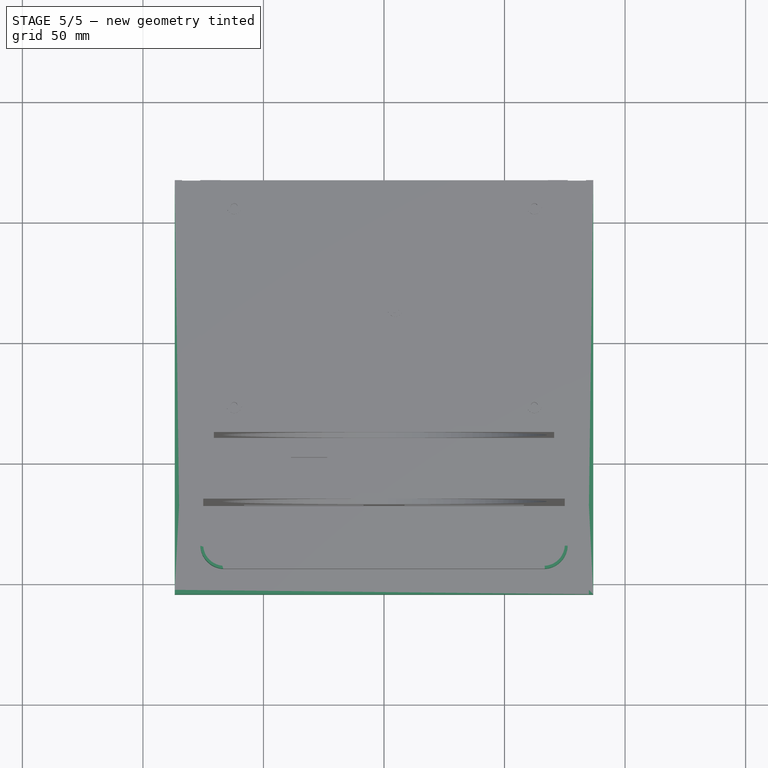
[diagram: stage 5 of 5 — top view after this stage's code; geometry added in this stage tinted green]
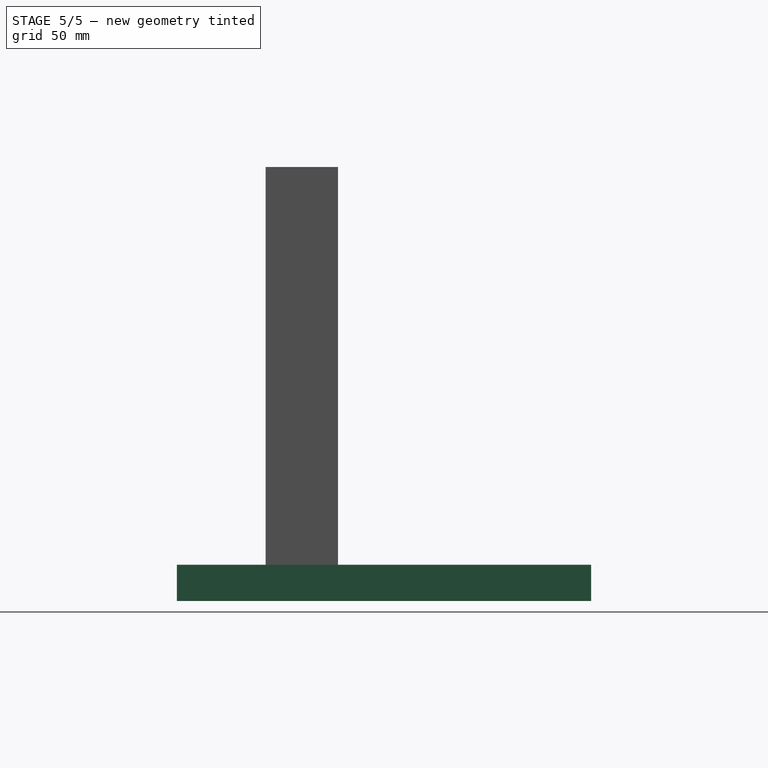
[diagram: stage 5 of 5 — right view after this stage's code; geometry added in this stage tinted green]
FEATURE [Sketcher::SketchObject] Sketch018
  ExternalGeometry = -> [Pocket009]
  FullyConstrained = true
  MapMode = 5
  Placement = pos=(0,1.1e-15,4) rot=(0,0,1;0rad)
  Support = -> [Pocket009]
  sketch-geometry (8):
    g0: ArcOfCircle CenterX=66.2 CenterY=-83.7 CenterZ=0 NormalX=0 NormalY=0 NormalZ=1 AngleXU=0 Radius=8.8 StartAngle=4.71239 EndAngle=6.28319
    g1: ArcOfCircle CenterX=-66.2 CenterY=-83.7 CenterZ=0 NormalX=0 NormalY=0 NormalZ=1 AngleXU=0 Radius=8.8 StartAngle=3.14159 EndAngle=4.71239
    g2: ArcOfCircle CenterX=-66.2 CenterY=-83.7 CenterZ=0 NormalX=0 NormalY=0 NormalZ=1 AngleXU=0 Radius=10 StartAngle=3.14159 EndAngle=4.71239
    g3: ArcOfCircle CenterX=66.2 CenterY=-83.7 CenterZ=0 NormalX=0 NormalY=0 NormalZ=1 AngleXU=0 Radius=10 StartAngle=4.71239 EndAngle=6.28319
    g4: LineSegment StartX=66.2 StartY=-93.7 StartZ=0 EndX=66.2 EndY=-92.5 EndZ=0
    g5: LineSegment StartX=75 StartY=-83.7 StartZ=0 EndX=76.2 EndY=-83.7 EndZ=0
    g6: LineSegment StartX=-66.2 StartY=-93.7 StartZ=0 EndX=-66.2 EndY=-92.5 EndZ=0
    g7: LineSegment StartX=-76.2 StartY=-83.7 StartZ=0 EndX=-75 EndY=-83.7 EndZ=0
  constraints (24):
    c: Coincident(g0,g-12)
    c: Coincident(g0,g-9)
    c: Angle(g0) = 1.5708
    c: Coincident(g1,g-11)
    c: Coincident(g1,g-3)
    c: Angle(g1) = 1.5708
    c: Coincident(g2,g1)
    c: Coincident(g2,g-6)
    c: Angle(g2) = 1.5708
    c: Coincident(g3,g0)
    c: Coincident(g3,g-8)
    c: Angle(g3) = 1.5708
    c: Coincident(g4,g3)
    c: Vertical(g4)
    c: DistanceY(g4,g4) = 1.2
    c: Coincident(g5,g0)
    c: Horizontal(g5)
    c: DistanceX(g5,g5) = 1.2
    c: Coincident(g6,g2)
    c: Vertical(g6)
    c: DistanceY(g6,g6) = 1.2
    c: Coincident(g7,g2)
    c: Horizontal(g7)
    c: DistanceX(g7,g7) = 1.2
FEATURE [PartDesign::Pad] Pad008
  BaseFeature = -> Pocket009
  Direction = (0,3e-16,1)
  Length = 11
  Length2 = 10
  Profile = -> Sketch018
  ReferenceAxis = -> Sketch018 [N_Axis]
  Type = 0
FEATURE [Sketcher::SketchObject] Sketch019
  ExternalGeometry = -> [Pad008]
  FullyConstrained = true
  MapMode = 5
  Placement = pos=(-85,0,0) rot=(0.57735,-0.57735,-0.57735;2.0944rad)
  Support = -> [Pad008]
  sketch-geometry (4):
    g0: LineSegment StartX=-67.5 StartY=15 StartZ=0 EndX=102.5 EndY=15 EndZ=0
    g1: LineSegment StartX=102.5 StartY=15 StartZ=0 EndX=102.5 EndY=0 EndZ=0
    g2: LineSegment StartX=102.5 StartY=0 StartZ=0 EndX=-67.5 EndY=0 EndZ=0
    g3: LineSegment StartX=-67.5 StartY=0 StartZ=0 EndX=-67.5 EndY=15 EndZ=0
  constraints (10):
    c: Coincident(g0,g1)
    c: Coincident(g1,g2)
    c: Coincident(g2,g3)
    c: Coincident(g3,g0)
    c: Horizontal(g0)
    c: Horizontal(g2)
    c: Vertical(g1)
    c: Vertical(g3)
    c: Coincident(g0,g-3)
    c: Coincident(g1,g-4)
FEATURE [PartDesign::Pad] Pad009
  BaseFeature = -> Pad008
  Direction = (-1,0,0)
  Length = 1.8
  Length2 = 10
  Profile = -> Sketch019
  ReferenceAxis = -> Sketch019 [N_Axis]
  Type = 0
FEATURE [Sketcher::SketchObject] Sketch020
  ExternalGeometry = -> [Pad009]
  FullyConstrained = true
  MapMode = 5
  Placement = pos=(0,-102.5,0) rot=(1,0,0;1.5708rad)
  Support = -> [Pad009]
  sketch-geometry (4):
    g0: LineSegment StartX=-86.8 StartY=15 StartZ=0 EndX=85 EndY=15 EndZ=0
    g1: LineSegment StartX=85 StartY=15 StartZ=0 EndX=85 EndY=0 EndZ=0
    g2: LineSegment StartX=85 StartY=0 StartZ=0 EndX=-86.8 EndY=0 EndZ=0
    g3: LineSegment StartX=-86.8 StartY=0 StartZ=0 EndX=-86.8 EndY=15 EndZ=0
  constraints (10):
    c: Coincident(g0,g1)
    c: Coincident(g1,g2)
    c: Coincident(g2,g3)
    c: Coincident(g3,g0)
    c: Horizontal(g0)
    c: Horizontal(g2)
    c: Vertical(g1)
    c: Vertical(g3)
    c: Coincident(g0,g-3)
    c: Coincident(g1,g-4)
FEATURE [PartDesign::Pad] Pad010
  BaseFeature = -> Pad009
  Direction = (0,-1,2e-16)
  Length = 1.8
  Length2 = 10
  Profile = -> Sketch020
  ReferenceAxis = -> Sketch020 [N_Axis]
  Type = 0
FEATURE [Sketcher::SketchObject] Sketch021
  ExternalGeometry = -> [Pad010]
  FullyConstrained = true
  MapMode = 5
  Placement = pos=(85,0,0) rot=(0.57735,0.57735,0.57735;2.0944rad)
  Support = -> [Pad010]
  sketch-geometry (4):
    g0: LineSegment StartX=-104.3 StartY=15 StartZ=0 EndX=67.5 EndY=15 EndZ=0
    g1: LineSegment StartX=67.5 StartY=15 StartZ=0 EndX=67.5 EndY=0 EndZ=0
    g2: LineSegment StartX=67.5 StartY=0 StartZ=0 EndX=-104.3 EndY=0 EndZ=0
    g3: LineSegment StartX=-104.3 StartY=0 StartZ=0 EndX=-104.3 EndY=15 EndZ=0
  constraints (10):
    c: Coincident(g0,g1)
    c: Coincident(g1,g2)
    c: Coincident(g2,g3)
    c: Coincident(g3,g0)
    c: Horizontal(g0)
    c: Horizontal(g2)
    c: Vertical(g1)
    c: Vertical(g3)
    c: Coincident(g0,g-3)
    c: Coincident(g1,g-4)
FEATURE [PartDesign::Pad] Pad011
  BaseFeature = -> Pad010
  Direction = (1,0,0)
  Length = 1.8
  Length2 = 10
  Profile = -> Sketch021
  ReferenceAxis = -> Sketch021 [N_Axis]
  Type = 0
FEATURE [PartDesign::Body] Body
  Group = -> [Sketch,Pad,Sketch001,Pad001,Sketch002,Pad002,Sketch003,Pocket,Sketch004,Pocket001,Sketch005,Pocket002,Sketch006,Pocket003,Sketch007,Pad003,Sketch008,Pocket004,Sketch009,Pad004,Sketch010,Pad005,Sketch011,Pad006,Sketch012,Pocket005,Sketch013,Pad007,Sketch014,Pocket006,Sketch015,Pocket007,Sketch016,Pocket008,Sketch017,Pocket009,Sketch018,Pad008,Sketch019,Pad009,Sketch020,Pad010,Sketch021,Pad011]
  Origin = -> Origin
  Tip = -> Pad011
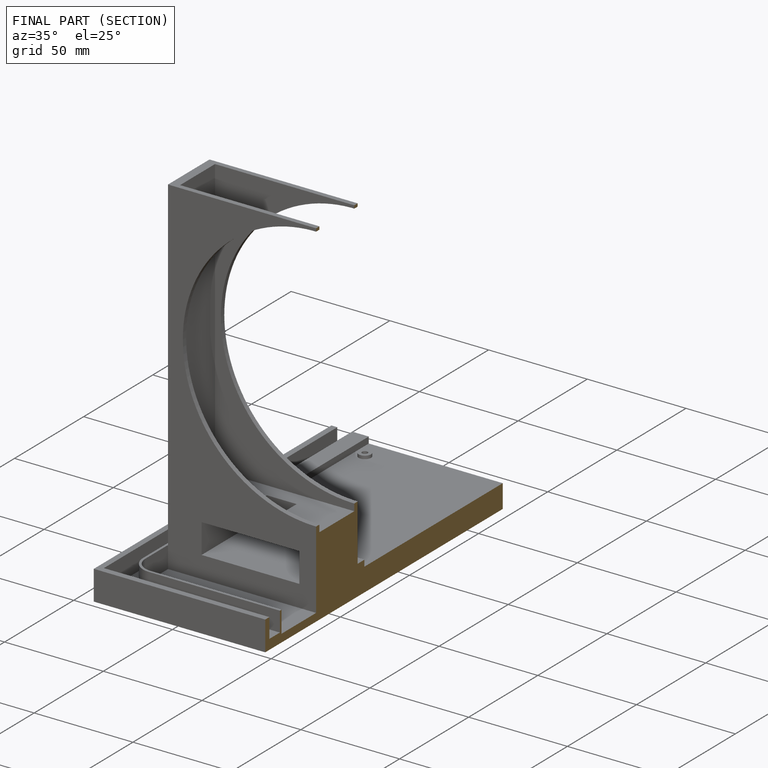
[diagram: finished part — half-section view (interior)]
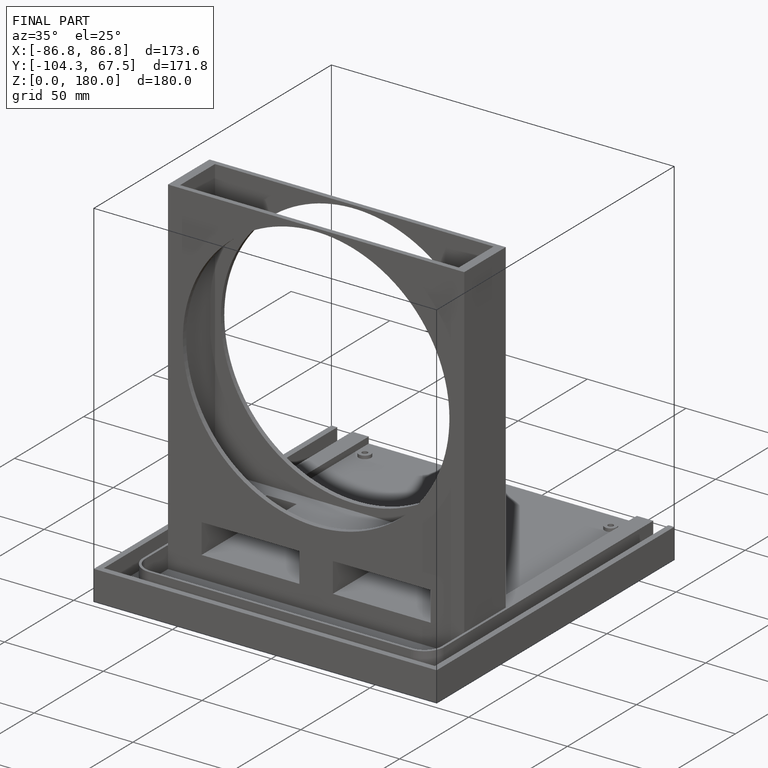
[diagram: finished part — iso view with bounding-box wireframe]
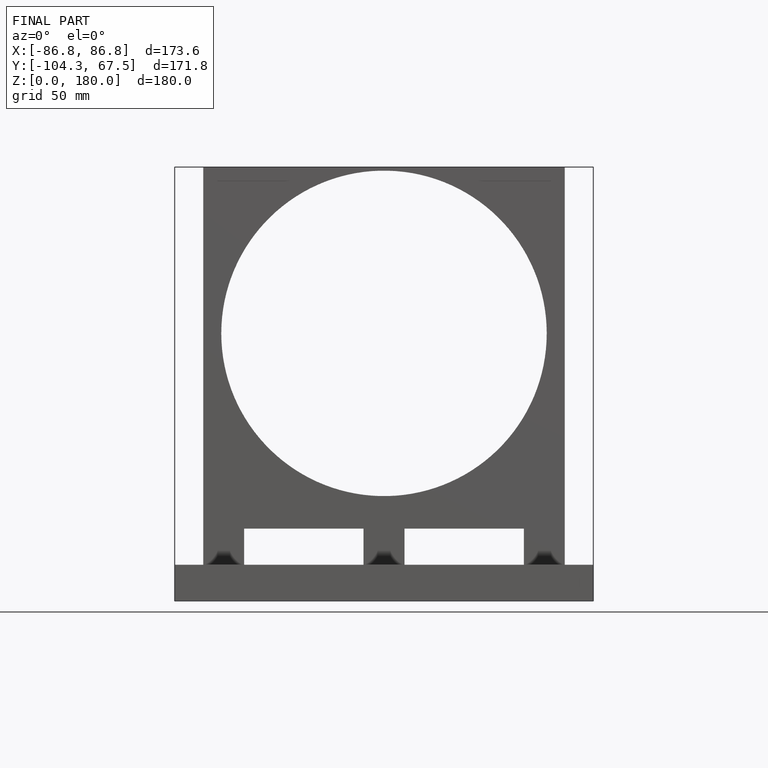
[diagram: finished part — front view with bounding-box wireframe]
